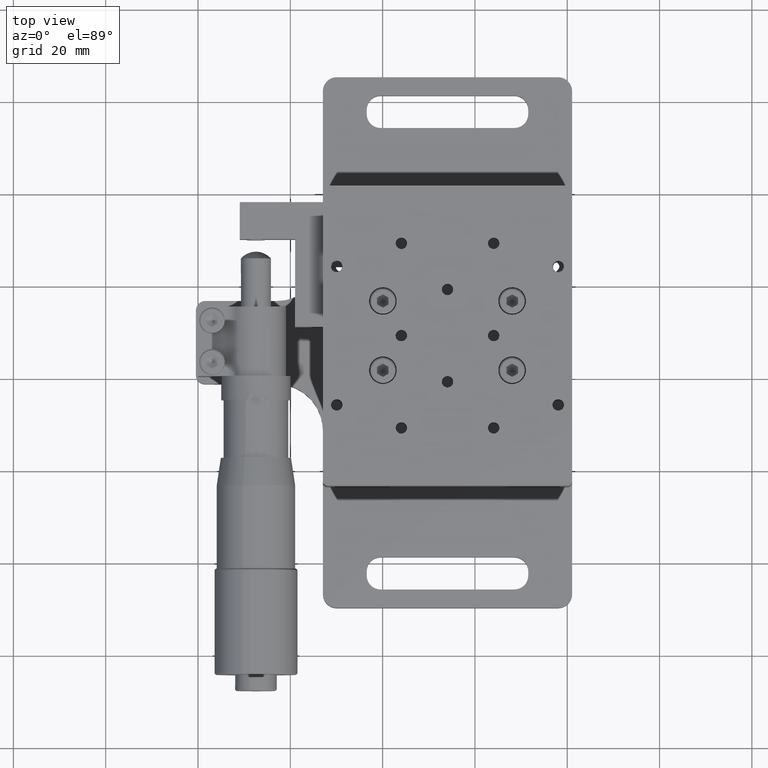
[diagram: clean part render]
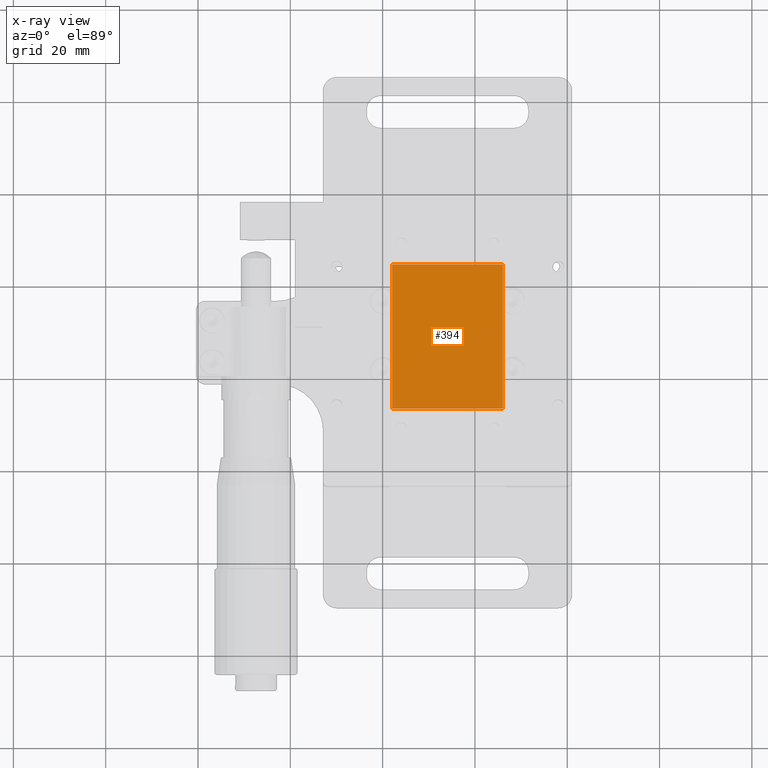
[diagram: x-ray — body ghosted, one internal face saturated and labeled with its STEP entity id]
A machine part, top view, then the same camera in x-ray: the body is ghosted and one INTERNAL B-rep face — a face not visible from any outside direction — is saturated and labeled: STEP entity #394.
In plain terms, the highlighted face is a freeform B-spline surface patch.
Its self-contained STEP definition (entity closure, byte-faithful):
#394=ADVANCED_FACE('',(#1047),#23807,.T.);
#1047=FACE_OUTER_BOUND('',#1700,.T.);
#1700=EDGE_LOOP('',(#2493,#2494,#2495,#2496));
#2493=ORIENTED_EDGE('',*,*,#19220,.T.);
#2494=ORIENTED_EDGE('',*,*,#19221,.T.);
#2495=ORIENTED_EDGE('',*,*,#19222,.T.);
#2496=ORIENTED_EDGE('',*,*,#19223,.T.);
#6118=PCURVE('',#23807,#9743);
#6119=PCURVE('',#23807,#9744);
#6120=PCURVE('',#23807,#9745);
#6121=PCURVE('',#23807,#9746);
#6271=PCURVE('',#23835,#9896);
#6360=PCURVE('',#23852,#9985);
#6793=PCURVE('',#23916,#10418);
#6805=PCURVE('',#23918,#10430);
#9743=DEFINITIONAL_REPRESENTATION('',(#13375),#50008);
#9744=DEFINITIONAL_REPRESENTATION('',(#13377),#50008);
#9745=DEFINITIONAL_REPRESENTATION('',(#13379),#50008);
#9746=DEFINITIONAL_REPRESENTATION('',(#13381),#50008);
#9896=DEFINITIONAL_REPRESENTATION('',(#13629),#50008);
#9985=DEFINITIONAL_REPRESENTATION('',(#13762),#50008);
#10418=DEFINITIONAL_REPRESENTATION('',(#14342),#50008);
#10430=DEFINITIONAL_REPRESENTATION('',(#14357),#50008);
#13374=B_SPLINE_CURVE_WITH_KNOTS('',1,(#31309,#31310),.UNSPECIFIED.,.F.,
 .F.,(2,2),(0.,24.),.UNSPECIFIED.);
#13375=B_SPLINE_CURVE_WITH_KNOTS('',1,(#31311,#31312),.UNSPECIFIED.,.F.,
 .F.,(2,2),(0.,24.),.UNSPECIFIED.);
#13376=B_SPLINE_CURVE_WITH_KNOTS('',1,(#31313,#31314),.UNSPECIFIED.,.F.,
 .F.,(2,2),(-31.2999999999999,0.),.UNSPECIFIED.);
#13377=B_SPLINE_CURVE_WITH_KNOTS('',1,(#31315,#31316),.UNSPECIFIED.,.F.,
 .F.,(2,2),(-31.2999999999999,0.),.UNSPECIFIED.);
#13378=B_SPLINE_CURVE_WITH_KNOTS('',1,(#31317,#31318),.UNSPECIFIED.,.F.,
 .F.,(2,2),(0.,24.),.UNSPECIFIED.);
#13379=B_SPLINE_CURVE_WITH_KNOTS('',1,(#31319,#31320),.UNSPECIFIED.,.F.,
 .F.,(2,2),(0.,24.),.UNSPECIFIED.);
#13380=B_SPLINE_CURVE_WITH_KNOTS('',1,(#31321,#31322),.UNSPECIFIED.,.F.,
 .F.,(2,2),(0.,31.2999999999999),.UNSPECIFIED.);
#13381=B_SPLINE_CURVE_WITH_KNOTS('',1,(#31323,#31324),.UNSPECIFIED.,.F.,
 .F.,(2,2),(0.,31.2999999999999),.UNSPECIFIED.);
#13629=B_SPLINE_CURVE_WITH_KNOTS('',1,(#31859,#31860),.UNSPECIFIED.,.F.,
 .F.,(2,2),(0.,24.),.UNSPECIFIED.);
#13762=B_SPLINE_CURVE_WITH_KNOTS('',1,(#32125,#32126),.UNSPECIFIED.,.F.,
 .F.,(2,2),(0.,24.),.UNSPECIFIED.);
#14342=B_SPLINE_CURVE_WITH_KNOTS('',1,(#33605,#33606),.UNSPECIFIED.,.F.,
 .F.,(2,2),(0.,31.2999999999999),.UNSPECIFIED.);
#14357=B_SPLINE_CURVE_WITH_KNOTS('',1,(#33635,#33636),.UNSPECIFIED.,.F.,
 .F.,(2,2),(-31.2999999999999,0.),.UNSPECIFIED.);
#17365=SURFACE_CURVE('',#13374,(#6118,#6360),.PCURVE_S1.);
#17366=SURFACE_CURVE('',#13376,(#6119,#6805),.PCURVE_S1.);
#17367=SURFACE_CURVE('',#13378,(#6120,#6271),.PCURVE_S1.);
#17368=SURFACE_CURVE('',#13380,(#6121,#6793),.PCURVE_S1.);
#19220=EDGE_CURVE('',#22560,#22561,#17365,.T.);
#19221=EDGE_CURVE('',#22561,#22562,#17366,.T.);
#19222=EDGE_CURVE('',#22562,#22563,#17367,.T.);
#19223=EDGE_CURVE('',#22563,#22560,#17368,.T.);
#22560=VERTEX_POINT('',#30203);
#22561=VERTEX_POINT('',#30204);
#22562=VERTEX_POINT('',#30205);
#22563=VERTEX_POINT('',#30206);
#23807=B_SPLINE_SURFACE_WITH_KNOTS('',1,1,((#24554,#24555),(#24556,#24557)),
 .UNSPECIFIED.,.F.,.F.,.F.,(2,2),(2,2),(-34.5499999999999,3.25),(-26.52,
2.52),.UNSPECIFIED.);
#23835=B_SPLINE_SURFACE_WITH_KNOTS('',1,1,((#24666,#24667),(#24668,#24669)),
 .UNSPECIFIED.,.F.,.F.,.F.,(2,2),(2,2),(-1.45261425959781,0.22738574040221),
(-14.52,14.52),.UNSPECIFIED.);
#23852=B_SPLINE_SURFACE_WITH_KNOTS('',1,1,((#24734,#24735),(#24736,#24737)),
 .UNSPECIFIED.,.F.,.F.,.F.,(2,2),(2,2),(-14.52,14.52),(-1.45261425959781,
0.22738574040221),.UNSPECIFIED.);
#23916=B_SPLINE_SURFACE_WITH_KNOTS('',1,1,((#25278,#25279),(#25280,#25281)),
 .UNSPECIFIED.,.F.,.F.,.F.,(2,2),(2,2),(-12.13,43.43),(4.34,6.26),
 .UNSPECIFIED.);
#23918=B_SPLINE_SURFACE_WITH_KNOTS('',1,1,((#25286,#25287),(#25288,#25289)),
 .UNSPECIFIED.,.F.,.F.,.F.,(2,2),(2,2),(-43.43,12.13),(-1.16,0.76),
 .UNSPECIFIED.);
#24554=CARTESIAN_POINT('',(-13.892950650202,0.633196415623465,33.4287996664618));
#24555=CARTESIAN_POINT('',(15.147049349798,0.633196415623474,33.4287996664618));
#24556=CARTESIAN_POINT('',(-13.892950650202,0.633196415623465,-4.37120033353815));
#24557=CARTESIAN_POINT('',(15.147049349798,0.633196415623474,-4.37120033353815));
#24666=CARTESIAN_POINT('',(15.147049349798,-0.306803584376537,-1.12120033353815));
#24667=CARTESIAN_POINT('',(-13.892950650202,-0.306803584376548,-1.12120033353815));
#24668=CARTESIAN_POINT('',(15.147049349798,1.37319641562349,-1.12120033353815));
#24669=CARTESIAN_POINT('',(-13.892950650202,1.37319641562347,-1.12120033353815));
#24734=CARTESIAN_POINT('',(15.147049349798,-0.306803584376537,30.1787996664618));
#24735=CARTESIAN_POINT('',(15.147049349798,1.37319641562349,30.1787996664618));
#24736=CARTESIAN_POINT('',(-13.892950650202,-0.306803584376548,30.1787996664618));
#24737=CARTESIAN_POINT('',(-13.892950650202,1.37319641562347,30.1787996664618));
#25278=CARTESIAN_POINT('',(12.627049349798,-0.526803584376528,-13.2512003335382));
#25279=CARTESIAN_POINT('',(12.627049349798,1.39319641562347,-13.2512003335382));
#25280=CARTESIAN_POINT('',(12.627049349798,-0.526803584376528,42.3087996664619));
#25281=CARTESIAN_POINT('',(12.627049349798,1.39319641562347,42.3087996664619));
#25286=CARTESIAN_POINT('',(-11.372950650202,-0.526803584376534,42.3087996664619));
#25287=CARTESIAN_POINT('',(-11.372950650202,1.39319641562347,42.3087996664619));
#25288=CARTESIAN_POINT('',(-11.372950650202,-0.526803584376534,-13.2512003335382));
#25289=CARTESIAN_POINT('',(-11.372950650202,1.39319641562347,-13.2512003335382));
#30203=CARTESIAN_POINT('',(12.627049349798,0.633196415623473,30.1787996664618));
#30204=CARTESIAN_POINT('',(-11.372950650202,0.633196415623466,30.1787996664618));
#30205=CARTESIAN_POINT('',(-11.372950650202,0.633196415623466,-1.12120033353815));
#30206=CARTESIAN_POINT('',(12.627049349798,0.633196415623473,-1.12120033353815));
#31309=CARTESIAN_POINT('',(12.627049349798,0.633196415623473,30.1787996664618));
#31310=CARTESIAN_POINT('',(-11.372950650202,0.633196415623466,30.1787996664618));
#31311=CARTESIAN_POINT('',(-31.2999999999999,-1.47089865273085E-15));
#31312=CARTESIAN_POINT('',(-31.2999999999999,-24.));
#31313=CARTESIAN_POINT('',(-11.372950650202,0.633196415623466,30.1787996664618));
#31314=CARTESIAN_POINT('',(-11.372950650202,0.633196415623466,-1.12120033353815));
#31315=CARTESIAN_POINT('',(-31.2999999999999,-24.));
#31316=CARTESIAN_POINT('',(1.12784561231759E-15,-24.));
#31317=CARTESIAN_POINT('',(-11.372950650202,0.633196415623466,-1.12120033353815));
#31318=CARTESIAN_POINT('',(12.627049349798,0.633196415623473,-1.12120033353815));
#31319=CARTESIAN_POINT('',(1.12784561231759E-15,-24.));
#31320=CARTESIAN_POINT('',(0.,0.));
#31321=CARTESIAN_POINT('',(12.627049349798,0.633196415623473,-1.12120033353815));
#31322=CARTESIAN_POINT('',(12.627049349798,0.633196415623473,30.1787996664618));
#31323=CARTESIAN_POINT('',(0.,0.));
#31324=CARTESIAN_POINT('',(-31.2999999999999,-1.47089865273085E-15));
#31859=CARTESIAN_POINT('',(-0.512614259597799,12.));
#31860=CARTESIAN_POINT('',(-0.512614259597802,-12.));
#32125=CARTESIAN_POINT('',(-12.,-0.512614259597802));
#32126=CARTESIAN_POINT('',(12.0000000000001,-0.512614259597799));
#33605=CARTESIAN_POINT('',(8.63324521140246E-32,5.5));
#33606=CARTESIAN_POINT('',(31.2999999999999,5.5));
#33635=CARTESIAN_POINT('',(-31.2999999999999,-5.43573470303576E-31));
#33636=CARTESIAN_POINT('',(0.,0.));
#50008=(
GEOMETRIC_REPRESENTATION_CONTEXT(2)
PARAMETRIC_REPRESENTATION_CONTEXT()
REPRESENTATION_CONTEXT('pspace','')
);